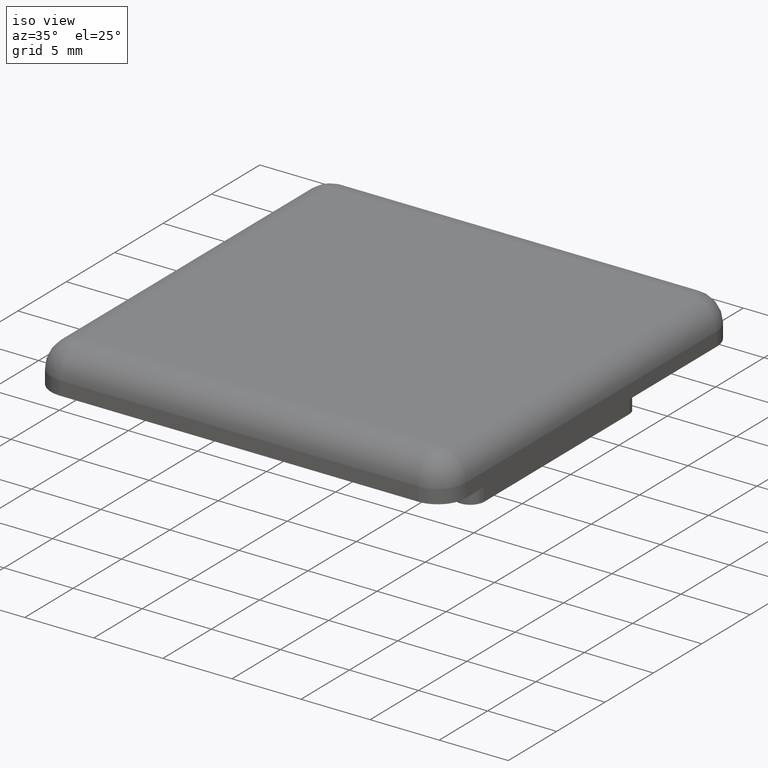
[diagram: clean part render]
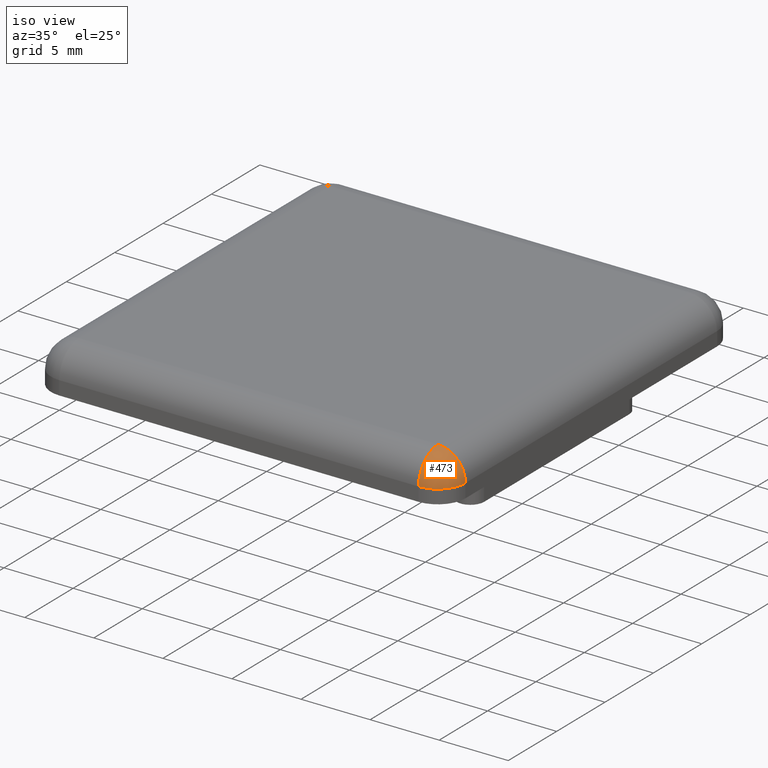
[diagram: same view with one face highlighted and labeled with its STEP entity id]
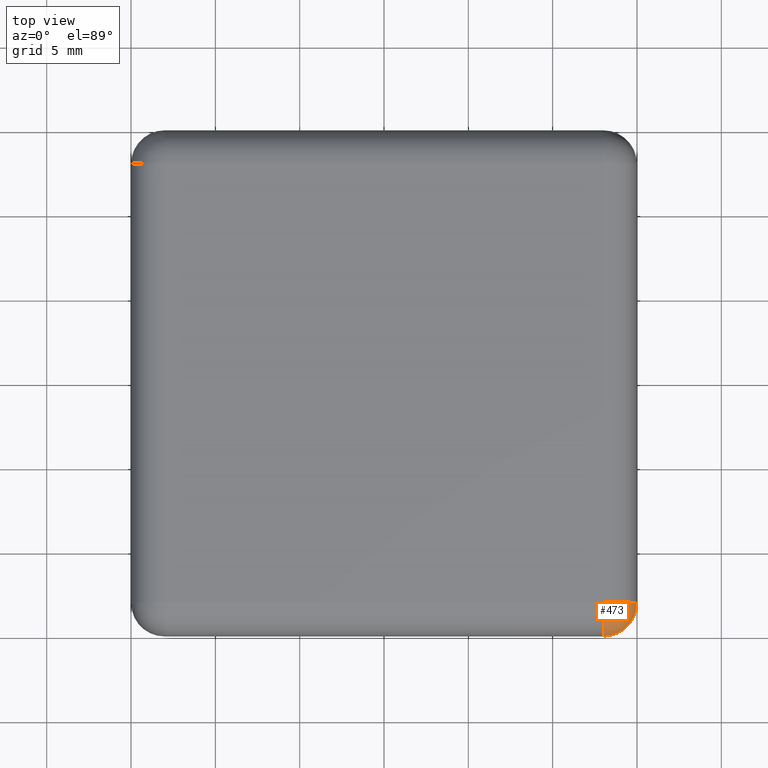
[diagram: same view with one face highlighted and labeled with its STEP entity id]
A machine part, iso view. The second image highlights one B-rep face of the part: STEP entity #473.
A second angle (top view) of the same face is appended — the face is thin or edge-on in the first view.
In plain terms, the highlighted spherical surface has radius 2 mm.
Its self-contained STEP definition (entity closure, byte-faithful):
#17=SPHERICAL_SURFACE('',#529,2.);
#129=FACE_OUTER_BOUND('',#167,.T.);
#167=EDGE_LOOP('',(#390,#391,#392));
#203=CIRCLE('',#530,2.);
#204=CIRCLE('',#531,2.);
#205=CIRCLE('',#532,2.);
#243=VERTEX_POINT('',#807);
#244=VERTEX_POINT('',#808);
#245=VERTEX_POINT('',#810);
#295=EDGE_CURVE('',#243,#244,#203,.F.);
#296=EDGE_CURVE('',#245,#243,#204,.F.);
#297=EDGE_CURVE('',#244,#245,#205,.F.);
#390=ORIENTED_EDGE('',*,*,#295,.F.);
#391=ORIENTED_EDGE('',*,*,#296,.F.);
#392=ORIENTED_EDGE('',*,*,#297,.F.);
#473=ADVANCED_FACE('',(#129),#17,.T.);
#529=AXIS2_PLACEMENT_3D('',#806,#655,#656);
#530=AXIS2_PLACEMENT_3D('',#809,#657,#658);
#531=AXIS2_PLACEMENT_3D('',#811,#659,#660);
#532=AXIS2_PLACEMENT_3D('',#812,#661,#662);
#655=DIRECTION('center_axis',(-0.408248290463862,-0.816496580927727,-0.408248290463862));
#656=DIRECTION('ref_axis',(0.577350269189626,-0.577350269189624,0.577350269189627));
#657=DIRECTION('center_axis',(1.,0.,0.));
#658=DIRECTION('ref_axis',(0.,-1.,0.));
#659=DIRECTION('center_axis',(0.,0.,1.));
#660=DIRECTION('ref_axis',(1.,0.,0.));
#661=DIRECTION('center_axis',(-1.11022302462516E-15,-1.,0.));
#662=DIRECTION('ref_axis',(0.,0.,1.));
#806=CARTESIAN_POINT('Origin',(13.,-13.,1.));
#807=CARTESIAN_POINT('',(13.,-15.,1.));
#808=CARTESIAN_POINT('',(13.,-13.,3.));
#809=CARTESIAN_POINT('Origin',(13.,-13.,1.));
#810=CARTESIAN_POINT('',(15.,-13.,1.));
#811=CARTESIAN_POINT('Origin',(13.,-13.,1.));
#812=CARTESIAN_POINT('Origin',(13.,-13.,1.));